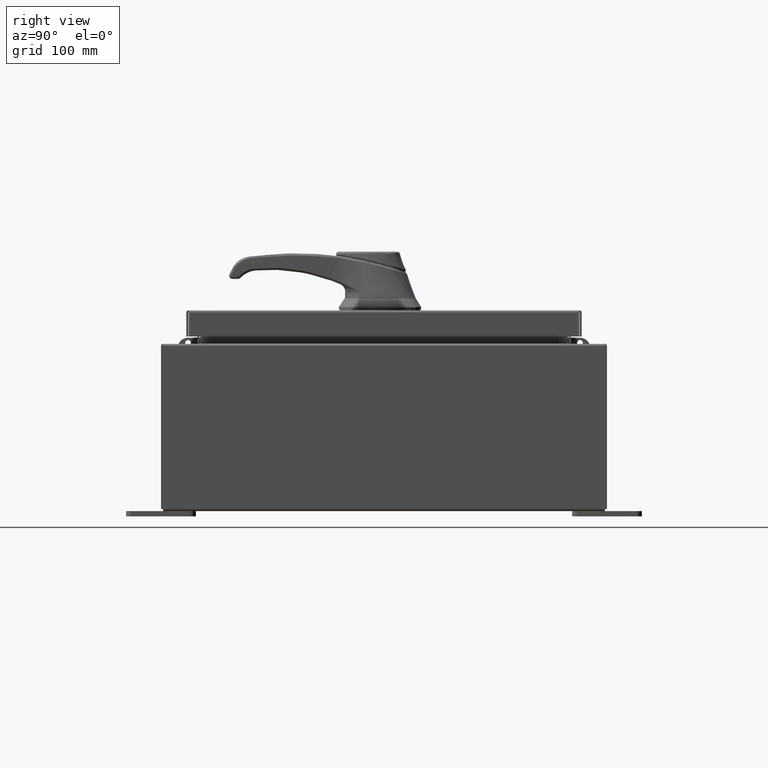
[diagram: clean part render]
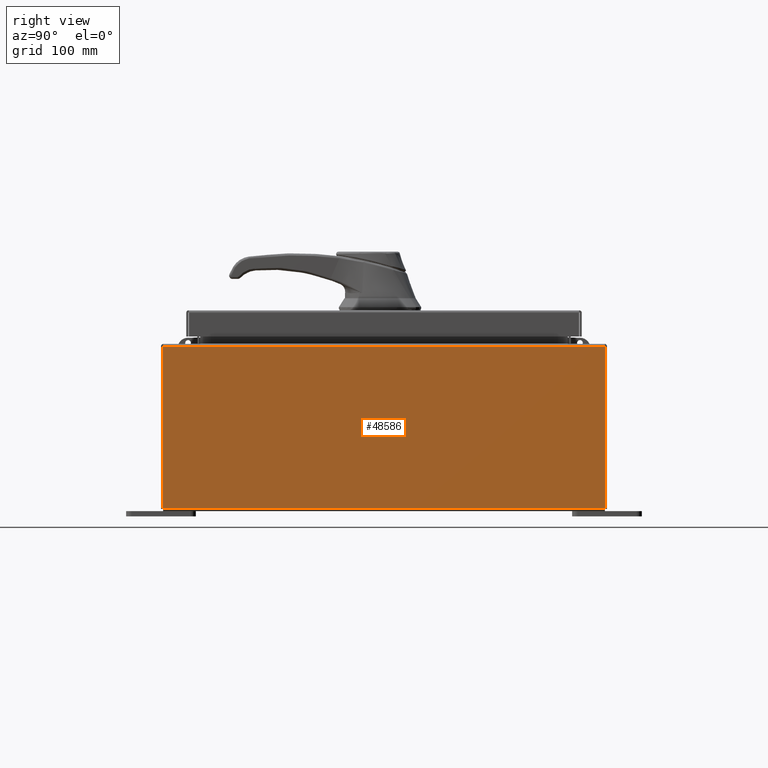
[diagram: same view with one face highlighted and labeled with its STEP entity id]
A machine part, right view. The second image highlights one B-rep face of the part: STEP entity #48586.
In plain terms, the highlighted planar face has unit normal (-1, 0, 0).
Its self-contained STEP definition (entity closure, byte-faithful):
#1801 = DIRECTION ( 'NONE',  ( 3.503965158194250900E-015, 0.0000000000000000000, 1.000000000000000000 ) ) ;
#1806 = ORIENTED_EDGE ( 'NONE', *, *, #27965, .T. ) ;
#2600 = CARTESIAN_POINT ( 'NONE',  ( 7.999999999999999100, -7.925300000000000000, 0.01299999999999984500 ) ) ;
#9688 = ORIENTED_EDGE ( 'NONE', *, *, #95769, .T. ) ;
#11105 = VERTEX_POINT ( 'NONE', #2600 ) ;
#15182 = VECTOR ( 'NONE', #28260, 39.37007874015748100 ) ;
#15780 = LINE ( 'NONE', #19155, #35255 ) ;
#19155 = CARTESIAN_POINT ( 'NONE',  ( 7.999999999999999100, 7.925299999999998200, -2.829253492156558900E-014 ) ) ;
#22685 = LINE ( 'NONE', #22869, #64232 ) ;
#22869 = CARTESIAN_POINT ( 'NONE',  ( 7.999999999999999100, -7.925300000000000000, 0.01299999999999984700 ) ) ;
#27521 = DIRECTION ( 'NONE',  ( 3.503965158194251300E-015, 0.0000000000000000000, 1.000000000000000000 ) ) ;
#27965 = EDGE_CURVE ( 'NONE', #73980, #36142, #15780, .T. ) ;
#28260 = DIRECTION ( 'NONE',  ( -0.0000000000000000000, -1.000000000000000000, -0.0000000000000000000 ) ) ;
#31940 = VERTEX_POINT ( 'NONE', #106409 ) ;
#35255 = VECTOR ( 'NONE', #27521, 39.37007874015748100 ) ;
#36142 = VERTEX_POINT ( 'NONE', #41939 ) ;
#36250 = CARTESIAN_POINT ( 'NONE',  ( 7.999999999999999100, -7.925300000000000900, -2.683095728639522500E-014 ) ) ;
#40844 = EDGE_LOOP ( 'NONE', ( #50077, #9688, #86157, #1806 ) ) ;
#41939 = CARTESIAN_POINT ( 'NONE',  ( 8.000000000000019500, 7.925300000000000000, 5.837600000000001000 ) ) ;
#43148 = CARTESIAN_POINT ( 'NONE',  ( 7.999999999999999100, 0.0000000000000000000, -2.829253492156558900E-014 ) ) ;
#43231 = CARTESIAN_POINT ( 'NONE',  ( 7.999999999999999100, 7.925300000000000000, 0.01299999999999984700 ) ) ;
#48586 = ADVANCED_FACE ( 'NONE', ( #90009 ), #92334, .F. ) ;
#50077 = ORIENTED_EDGE ( 'NONE', *, *, #86854, .T. ) ;
#51490 = DIRECTION ( 'NONE',  ( -1.000000000000000000, 0.0000000000000000000, 3.503965158194250900E-015 ) ) ;
#57449 = VECTOR ( 'NONE', #102448, 39.37007874015748100 ) ;
#63633 = EDGE_CURVE ( 'NONE', #73980, #11105, #22685, .T. ) ;
#64232 = VECTOR ( 'NONE', #89122, 39.37007874015748100 ) ;
#73980 = VERTEX_POINT ( 'NONE', #43231 ) ;
#86131 = CARTESIAN_POINT ( 'NONE',  ( 8.000000000000019500, 7.925300000000000000, 5.837600000000001000 ) ) ;
#86157 = ORIENTED_EDGE ( 'NONE', *, *, #63633, .F. ) ;
#86854 = EDGE_CURVE ( 'NONE', #36142, #31940, #103255, .T. ) ;
#89122 = DIRECTION ( 'NONE',  ( -0.0000000000000000000, -1.000000000000000000, -0.0000000000000000000 ) ) ;
#90009 = FACE_OUTER_BOUND ( 'NONE', #40844, .T. ) ;
#92334 = PLANE ( 'NONE',  #100980 ) ;
#95769 = EDGE_CURVE ( 'NONE', #31940, #11105, #103974, .T. ) ;
#100980 = AXIS2_PLACEMENT_3D ( 'NONE', #43148, #51490, #1801 ) ;
#102448 = DIRECTION ( 'NONE',  ( -3.503965158194251300E-015, -1.844192188523290500E-016, -1.000000000000000000 ) ) ;
#103255 = LINE ( 'NONE', #86131, #15182 ) ;
#103974 = LINE ( 'NONE', #36250, #57449 ) ;
#106409 = CARTESIAN_POINT ( 'NONE',  ( 8.000000000000019500, -7.925300000000000000, 5.837600000000001000 ) ) ;